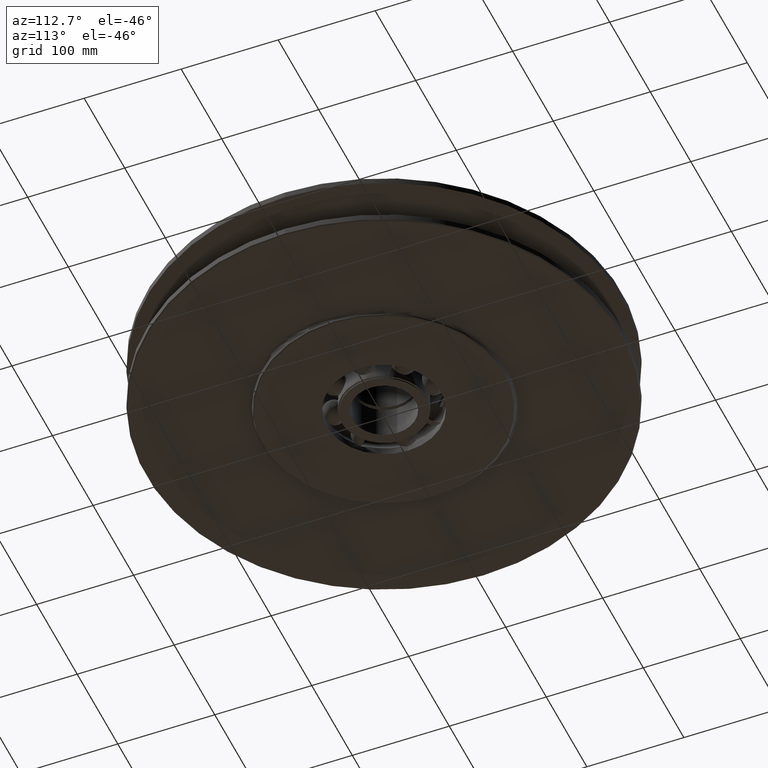
[diagram: clean part render]
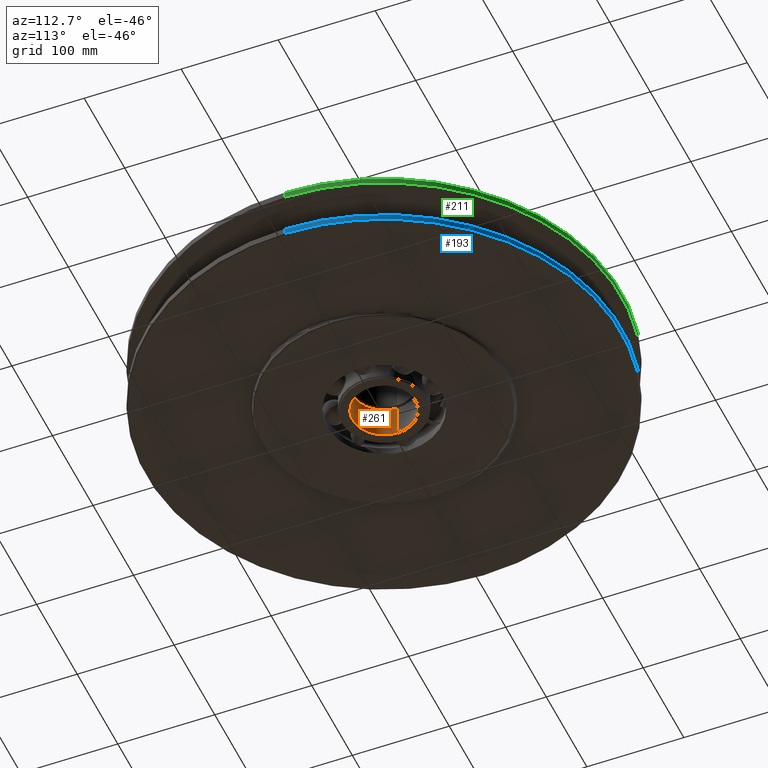
[diagram: same view with three faces highlighted in distinct colors, each labeled with its STEP entity id]
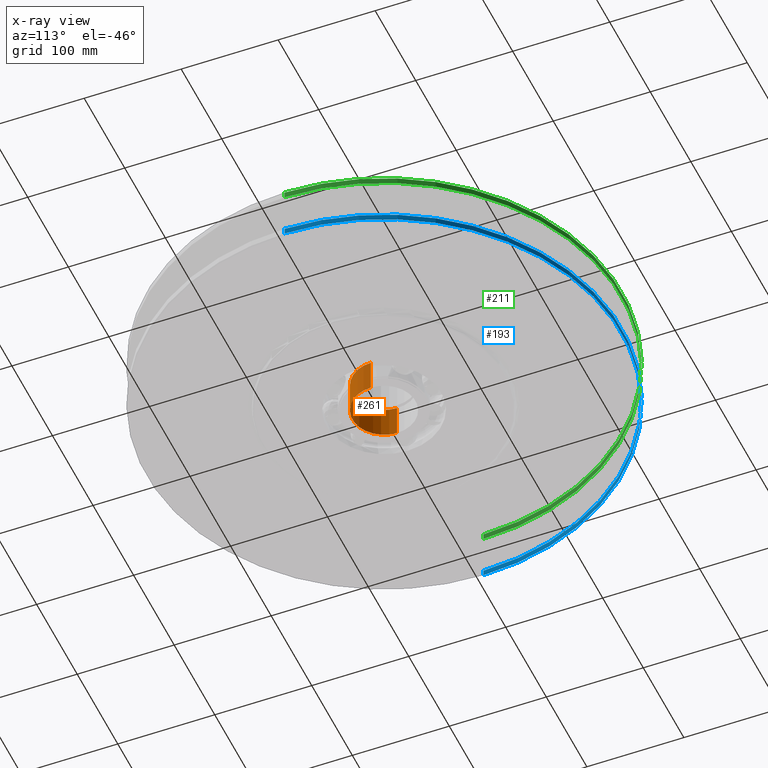
[diagram: x-ray of the same camera — body ghosted, the three highlighted faces saturated]
A machine part, auxiliary view with three faces highlighted in distinct colors.
The next image is the same camera in x-ray (body ghosted, the three faces saturated) — at least one of them is partly hidden behind the body in this view.
Their STEP definitions:

[orange] entity #261 — the highlighted cylindrical surface (edge-blend (fillet) strip) has radius 32.5 mm, axis along (0, 0, -1).
#261=ADVANCED_FACE('',(#592),#593,.F.);
#592=FACE_OUTER_BOUND('',#1002,.T.);
#593=CYLINDRICAL_SURFACE('',#1003,32.5);
#1002=EDGE_LOOP('',(#1827,#1828,#1829,#1830));
#1003=AXIS2_PLACEMENT_3D('',#1831,#1832,#1833);
#1827=ORIENTED_EDGE('',*,*,#2933,.F.);
#1828=ORIENTED_EDGE('',*,*,#2934,.F.);
#1829=ORIENTED_EDGE('',*,*,#2935,.F.);
#1830=ORIENTED_EDGE('',*,*,#2936,.F.);
#1831=CARTESIAN_POINT('',(0.0,0.0,-18.5));
#1832=DIRECTION('',(0.0,0.0,-1.0));
#1833=DIRECTION('',(1.0,0.0,0.0));
#2933=EDGE_CURVE('',#3722,#3723,#3724,.T.);
#2934=EDGE_CURVE('',#3725,#3722,#3726,.T.);
#2935=EDGE_CURVE('',#3727,#3725,#3728,.T.);
#2936=EDGE_CURVE('',#3723,#3727,#3729,.T.);
#3722=VERTEX_POINT('',#7827);
#3723=VERTEX_POINT('',#7828);
#3724=LINE('',#7829,#7830);
#3725=VERTEX_POINT('',#7831);
#3726=CIRCLE('',#7832,32.5);
#3727=VERTEX_POINT('',#7833);
#3728=LINE('',#7834,#7835);
#3729=CIRCLE('',#7836,32.5);
#7827=CARTESIAN_POINT('',(32.5,0.0,-36.0));
#7828=CARTESIAN_POINT('',(32.5,0.0,-2.0));
#7829=CARTESIAN_POINT('',(32.5,3.9801020972289E-015,-18.5));
#7830=VECTOR('',#9596,1.0);
#7831=CARTESIAN_POINT('',(-32.5,-3.9801020972289E-015,-36.0));
#7832=AXIS2_PLACEMENT_3D('',#9597,#9598,#9599);
#7833=CARTESIAN_POINT('',(-32.5,-3.9801020972289E-015,-2.0));
#7834=CARTESIAN_POINT('',(-32.5,-3.9801020972289E-015,-18.5));
#7835=VECTOR('',#9600,1.0);
#7836=AXIS2_PLACEMENT_3D('',#9601,#9602,#9603);
#9596=DIRECTION('',(-0.0,-0.0,1.0));
#9597=CARTESIAN_POINT('',(0.0,0.0,-36.0));
#9598=DIRECTION('',(0.0,-0.0,1.0));
#9599=DIRECTION('',(1.0,0.0,0.0));
#9600=DIRECTION('',(-0.0,-0.0,-1.0));
#9601=CARTESIAN_POINT('',(0.0,0.0,-2.0));
#9602=DIRECTION('',(0.0,0.0,-1.0));
#9603=DIRECTION('',(1.0,0.0,0.0));

[blue] entity #193 — the highlighted cylindrical surface (partial cylindrical patch) has radius 245 mm, axis along (0, 0, 1).
#193=ADVANCED_FACE('',(#484),#485,.T.);
#484=FACE_OUTER_BOUND('',#894,.T.);
#485=CYLINDRICAL_SURFACE('',#895,245.0);
#894=EDGE_LOOP('',(#1403,#1404,#1405,#1406));
#895=AXIS2_PLACEMENT_3D('',#1407,#1408,#1409);
#1403=ORIENTED_EDGE('',*,*,#2665,.F.);
#1404=ORIENTED_EDGE('',*,*,#2666,.T.);
#1405=ORIENTED_EDGE('',*,*,#2667,.F.);
#1406=ORIENTED_EDGE('',*,*,#2661,.F.);
#1407=CARTESIAN_POINT('',(0.0,0.0,-24.8435955));
#1408=DIRECTION('',(0.0,0.0,1.0));
#1409=DIRECTION('',(1.0,0.0,0.0));
#2661=EDGE_CURVE('',#3271,#3273,#3274,.T.);
#2665=EDGE_CURVE('',#3278,#3271,#3279,.T.);
#2666=EDGE_CURVE('',#3278,#3280,#3281,.T.);
#2667=EDGE_CURVE('',#3273,#3280,#3282,.T.);
#3271=VERTEX_POINT('',#5306);
#3273=VERTEX_POINT('',#5309);
#3274=CIRCLE('',#5310,245.0);
#3278=VERTEX_POINT('',#5315);
#3279=LINE('',#5316,#5317);
#3280=VERTEX_POINT('',#5318);
#3281=CIRCLE('',#5319,245.0);
#3282=LINE('',#5320,#5321);
#5306=CARTESIAN_POINT('',(245.0,0.0,-21.687191));
#5309=CARTESIAN_POINT('',(-245.0,3.00038465791101E-014,-21.687191));
#5310=AXIS2_PLACEMENT_3D('',#9247,#9248,#9249);
#5315=CARTESIAN_POINT('',(245.0,0.0,-28.0));
#5316=CARTESIAN_POINT('',(245.0,-3.00038465791101E-014,-24.8435955));
#5317=VECTOR('',#9254,1.0);
#5318=CARTESIAN_POINT('',(-245.0,3.00038465791101E-014,-28.0));
#5319=AXIS2_PLACEMENT_3D('',#9255,#9256,#9257);
#5320=CARTESIAN_POINT('',(-245.0,3.00038465791101E-014,-24.8435955));
#5321=VECTOR('',#9258,1.0);
#9247=CARTESIAN_POINT('',(0.0,0.0,-21.687191));
#9248=DIRECTION('',(0.0,0.0,1.0));
#9249=DIRECTION('',(1.0,0.0,0.0));
#9254=DIRECTION('',(0.0,0.0,1.0));
#9255=CARTESIAN_POINT('',(0.0,0.0,-28.0));
#9256=DIRECTION('',(0.0,0.0,1.0));
#9257=DIRECTION('',(1.0,0.0,0.0));
#9258=DIRECTION('',(-0.0,-0.0,-1.0));

[green] entity #211 — the highlighted cylindrical surface (partial cylindrical patch) has radius 245 mm, axis along (0, 0, 1).
#211=ADVANCED_FACE('',(#511),#512,.T.);
#511=FACE_OUTER_BOUND('',#921,.T.);
#512=CYLINDRICAL_SURFACE('',#922,245.0);
#921=EDGE_LOOP('',(#1475,#1476,#1477,#1478));
#922=AXIS2_PLACEMENT_3D('',#1479,#1480,#1481);
#1475=ORIENTED_EDGE('',*,*,#2706,.F.);
#1476=ORIENTED_EDGE('',*,*,#2654,.T.);
#1477=ORIENTED_EDGE('',*,*,#2707,.F.);
#1478=ORIENTED_EDGE('',*,*,#2702,.F.);
#1479=CARTESIAN_POINT('',(0.0,0.0,24.8435955));
#1480=DIRECTION('',(0.0,0.0,1.0));
#1481=DIRECTION('',(1.0,0.0,0.0));
#2654=EDGE_CURVE('',#3259,#3261,#3263,.T.);
#2702=EDGE_CURVE('',#3334,#3337,#3338,.T.);
#2706=EDGE_CURVE('',#3259,#3334,#3343,.T.);
#2707=EDGE_CURVE('',#3337,#3261,#3344,.T.);
#3259=VERTEX_POINT('',#5292);
#3261=VERTEX_POINT('',#5295);
#3263=CIRCLE('',#5298,245.0);
#3334=VERTEX_POINT('',#5383);
#3337=VERTEX_POINT('',#5387);
#3338=CIRCLE('',#5388,245.0);
#3343=LINE('',#5394,#5395);
#3344=LINE('',#5396,#5397);
#5292=CARTESIAN_POINT('',(245.0,0.0,21.687191));
#5295=CARTESIAN_POINT('',(-245.0,3.00038465791101E-014,21.687191));
#5298=AXIS2_PLACEMENT_3D('',#9234,#9235,#9236);
#5383=CARTESIAN_POINT('',(245.0,0.0,28.0));
#5387=CARTESIAN_POINT('',(-245.0,3.00038465791101E-014,28.0));
#5388=AXIS2_PLACEMENT_3D('',#9315,#9316,#9317);
#5394=CARTESIAN_POINT('',(245.0,-3.00038465791101E-014,24.8435955));
#5395=VECTOR('',#9322,1.0);
#5396=CARTESIAN_POINT('',(-245.0,3.00038465791101E-014,24.8435955));
#5397=VECTOR('',#9323,1.0);
#9234=CARTESIAN_POINT('',(0.0,0.0,21.687191));
#9235=DIRECTION('',(0.0,0.0,1.0));
#9236=DIRECTION('',(1.0,0.0,0.0));
#9315=CARTESIAN_POINT('',(0.0,0.0,28.0));
#9316=DIRECTION('',(0.0,0.0,1.0));
#9317=DIRECTION('',(1.0,0.0,0.0));
#9322=DIRECTION('',(0.0,0.0,1.0));
#9323=DIRECTION('',(-0.0,-0.0,-1.0));